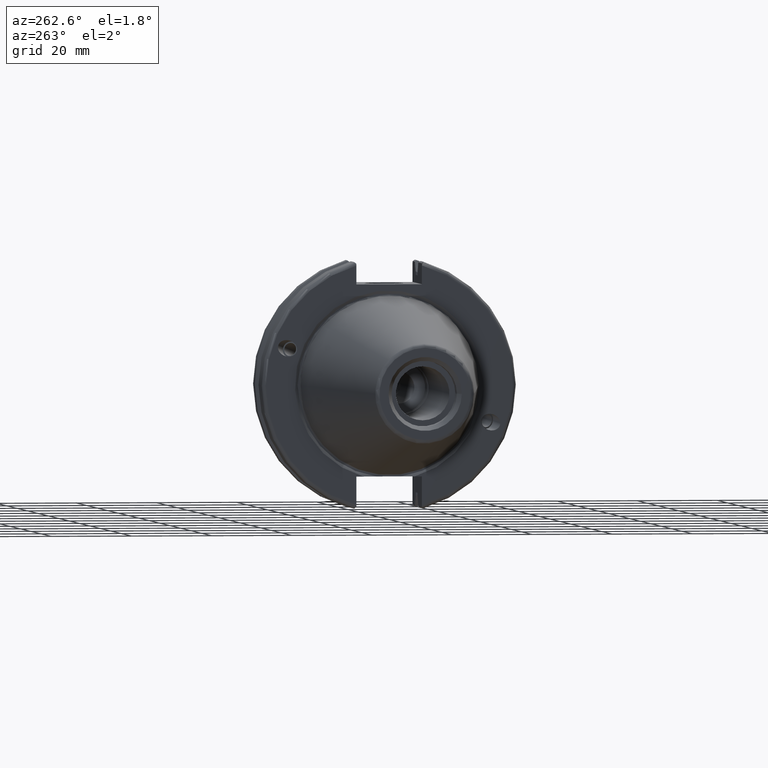
[diagram: clean part render]
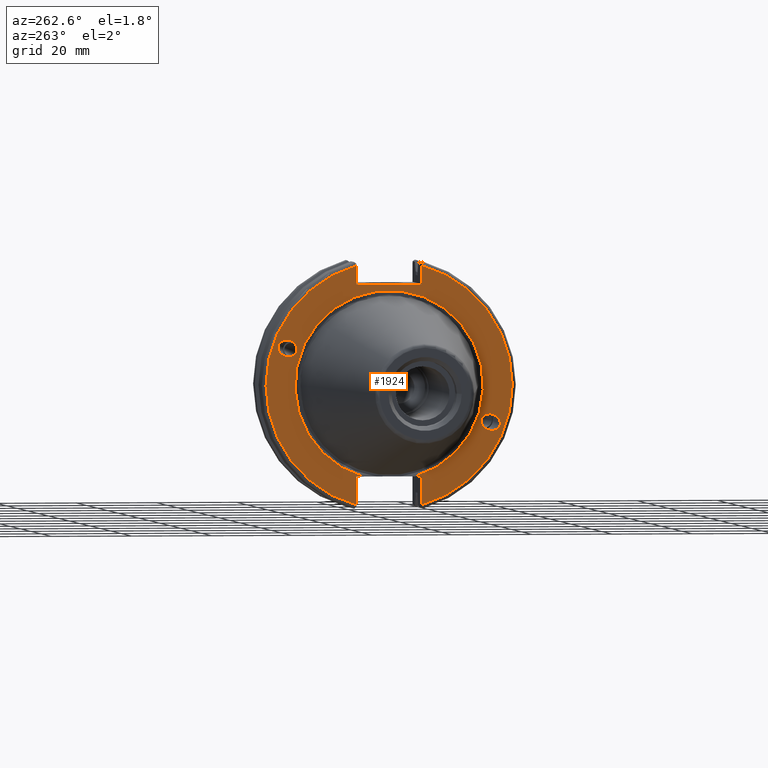
[diagram: same view with one face highlighted and labeled with its STEP entity id]
A machine part, auxiliary view. The second image highlights one B-rep face of the part: STEP entity #1924.
In plain terms, the highlighted planar face has unit normal (-1, 0, 0).
Its self-contained STEP definition (entity closure, byte-faithful):
#41=ELLIPSE('',#2116,2.4415491775229,1.99999999999999);
#50=ELLIPSE('',#2160,2.4415491775229,1.99999999999999);
#60=FACE_BOUND('',#568,.T.);
#61=FACE_BOUND('',#569,.T.);
#82=PLANE('',#2179);
#228=LINE('',#3558,#323);
#232=LINE('',#3604,#327);
#240=LINE('',#3640,#335);
#242=LINE('',#3664,#337);
#243=LINE('',#3668,#338);
#244=LINE('',#3670,#339);
#245=LINE('',#3673,#340);
#323=VECTOR('',#2678,10.);
#327=VECTOR('',#2690,10.);
#335=VECTOR('',#2700,10.);
#337=VECTOR('',#2710,10.);
#338=VECTOR('',#2713,10.);
#339=VECTOR('',#2714,10.);
#340=VECTOR('',#2717,10.);
#450=FACE_OUTER_BOUND('',#567,.T.);
#567=EDGE_LOOP('',(#1653,#1654,#1655,#1656,#1657,#1658,#1659,#1660,#1661,
#1662));
#568=EDGE_LOOP('',(#1663));
#569=EDGE_LOOP('',(#1664));
#715=CIRCLE('',#2178,30.75);
#716=CIRCLE('',#2180,30.75);
#717=CIRCLE('',#2181,23.5);
#832=VERTEX_POINT('',#3270);
#873=VERTEX_POINT('',#3473);
#893=VERTEX_POINT('',#3550);
#894=VERTEX_POINT('',#3557);
#900=VERTEX_POINT('',#3601);
#901=VERTEX_POINT('',#3603);
#909=VERTEX_POINT('',#3632);
#910=VERTEX_POINT('',#3639);
#913=VERTEX_POINT('',#3665);
#914=VERTEX_POINT('',#3667);
#915=VERTEX_POINT('',#3669);
#916=VERTEX_POINT('',#3671);
#1069=EDGE_CURVE('',#832,#832,#41,.T.);
#1126=EDGE_CURVE('',#873,#873,#50,.T.);
#1152=EDGE_CURVE('',#894,#893,#228,.T.);
#1162=EDGE_CURVE('',#901,#900,#232,.T.);
#1174=EDGE_CURVE('',#910,#909,#240,.T.);
#1179=EDGE_CURVE('',#901,#909,#715,.T.);
#1180=EDGE_CURVE('',#900,#894,#242,.T.);
#1181=EDGE_CURVE('',#913,#893,#716,.T.);
#1182=EDGE_CURVE('',#913,#914,#243,.T.);
#1183=EDGE_CURVE('',#914,#915,#244,.T.);
#1184=EDGE_CURVE('',#915,#916,#717,.T.);
#1185=EDGE_CURVE('',#916,#910,#245,.T.);
#1653=ORIENTED_EDGE('',*,*,#1179,.F.);
#1654=ORIENTED_EDGE('',*,*,#1162,.T.);
#1655=ORIENTED_EDGE('',*,*,#1180,.T.);
#1656=ORIENTED_EDGE('',*,*,#1152,.T.);
#1657=ORIENTED_EDGE('',*,*,#1181,.F.);
#1658=ORIENTED_EDGE('',*,*,#1182,.T.);
#1659=ORIENTED_EDGE('',*,*,#1183,.T.);
#1660=ORIENTED_EDGE('',*,*,#1184,.T.);
#1661=ORIENTED_EDGE('',*,*,#1185,.T.);
#1662=ORIENTED_EDGE('',*,*,#1174,.T.);
#1663=ORIENTED_EDGE('',*,*,#1069,.T.);
#1664=ORIENTED_EDGE('',*,*,#1126,.T.);
#1924=ADVANCED_FACE('',(#450,#60,#61),#82,.T.);
#2116=AXIS2_PLACEMENT_3D('',#3272,#2538,#2539);
#2160=AXIS2_PLACEMENT_3D('',#3475,#2642,#2643);
#2178=AXIS2_PLACEMENT_3D('',#3662,#2706,#2707);
#2179=AXIS2_PLACEMENT_3D('',#3663,#2708,#2709);
#2180=AXIS2_PLACEMENT_3D('',#3666,#2711,#2712);
#2181=AXIS2_PLACEMENT_3D('',#3672,#2715,#2716);
#2538=DIRECTION('center_axis',(1.,0.,0.));
#2539=DIRECTION('ref_axis',(0.,-0.939692620785908,-0.342020143325669));
#2642=DIRECTION('center_axis',(1.,0.,0.));
#2643=DIRECTION('ref_axis',(0.,0.939692620785908,0.342020143325669));
#2678=DIRECTION('',(0.,0.,1.));
#2690=DIRECTION('',(0.,0.,-1.));
#2700=DIRECTION('',(0.,0.,-1.));
#2706=DIRECTION('center_axis',(1.,0.,0.));
#2707=DIRECTION('ref_axis',(0.,-1.,1.60812264967664E-16));
#2708=DIRECTION('center_axis',(-1.,0.,0.));
#2709=DIRECTION('ref_axis',(0.,0.,1.));
#2710=DIRECTION('',(0.,1.,0.));
#2711=DIRECTION('center_axis',(1.,0.,0.));
#2712=DIRECTION('ref_axis',(0.,1.,1.60812264967664E-16));
#2713=DIRECTION('',(0.,0.,1.));
#2714=DIRECTION('',(0.,-1.,0.));
#2715=DIRECTION('center_axis',(1.,0.,0.));
#2716=DIRECTION('ref_axis',(0.,0.,-1.));
#2717=DIRECTION('',(0.,-1.,0.));
#3270=CARTESIAN_POINT('',(1.,-23.0773950158154,-8.39948487016));
#3272=CARTESIAN_POINT('Origin',(1.,-25.3717007612195,-9.23454386979305));
#3473=CARTESIAN_POINT('',(1.,23.0773950158154,8.39948487016001));
#3475=CARTESIAN_POINT('Origin',(1.,25.3717007612195,9.23454386979306));
#3550=CARTESIAN_POINT('',(1.,8.19,29.6392712461019));
#3557=CARTESIAN_POINT('',(1.,8.19,25.));
#3558=CARTESIAN_POINT('',(1.,8.19,12.5));
#3601=CARTESIAN_POINT('',(1.,-8.19,25.));
#3603=CARTESIAN_POINT('',(1.,-8.18999999999999,29.6392712461019));
#3604=CARTESIAN_POINT('',(1.,-8.18999999999999,12.5));
#3632=CARTESIAN_POINT('',(1.,-8.19,-29.6392712461019));
#3639=CARTESIAN_POINT('',(1.,-8.19,-22.6));
#3640=CARTESIAN_POINT('',(1.,-8.19,-11.3));
#3662=CARTESIAN_POINT('Origin',(1.,0.,0.));
#3663=CARTESIAN_POINT('Origin',(1.,31.75,0.));
#3664=CARTESIAN_POINT('',(1.,15.875,25.));
#3665=CARTESIAN_POINT('',(1.,8.18999999999999,-29.6392712461019));
#3666=CARTESIAN_POINT('Origin',(1.,0.,0.));
#3667=CARTESIAN_POINT('',(0.999999999999998,8.19,-22.6));
#3668=CARTESIAN_POINT('',(1.,8.18999999999999,-11.3));
#3669=CARTESIAN_POINT('',(0.999999999999997,6.4412731660752,-22.6));
#3670=CARTESIAN_POINT('',(1.,15.875,-22.6));
#3671=CARTESIAN_POINT('',(1.,-6.44127316607517,-22.6));
#3672=CARTESIAN_POINT('Origin',(0.999999999999996,0.,0.));
#3673=CARTESIAN_POINT('',(1.,15.875,-22.6));